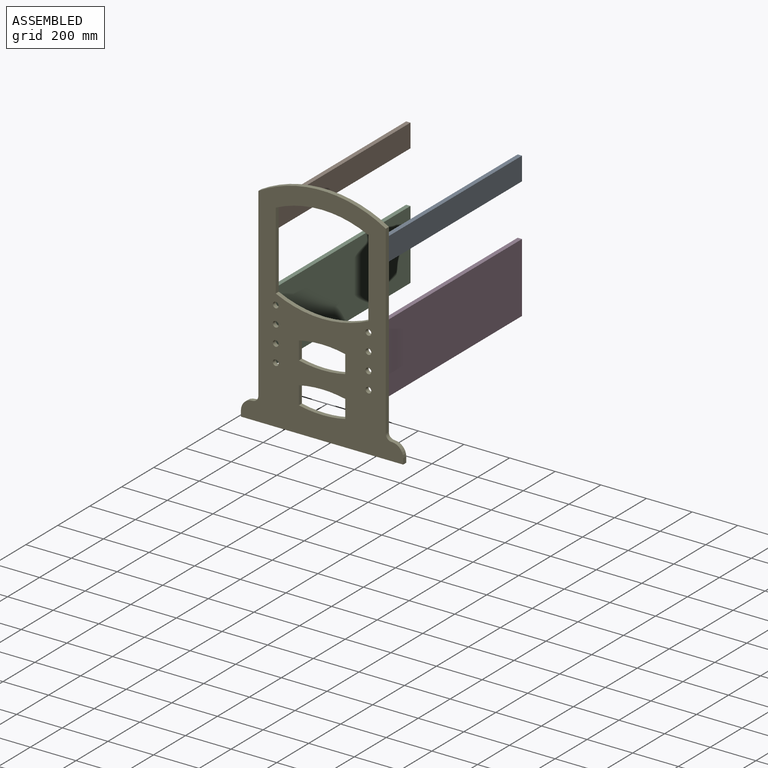
[diagram: assembled view]
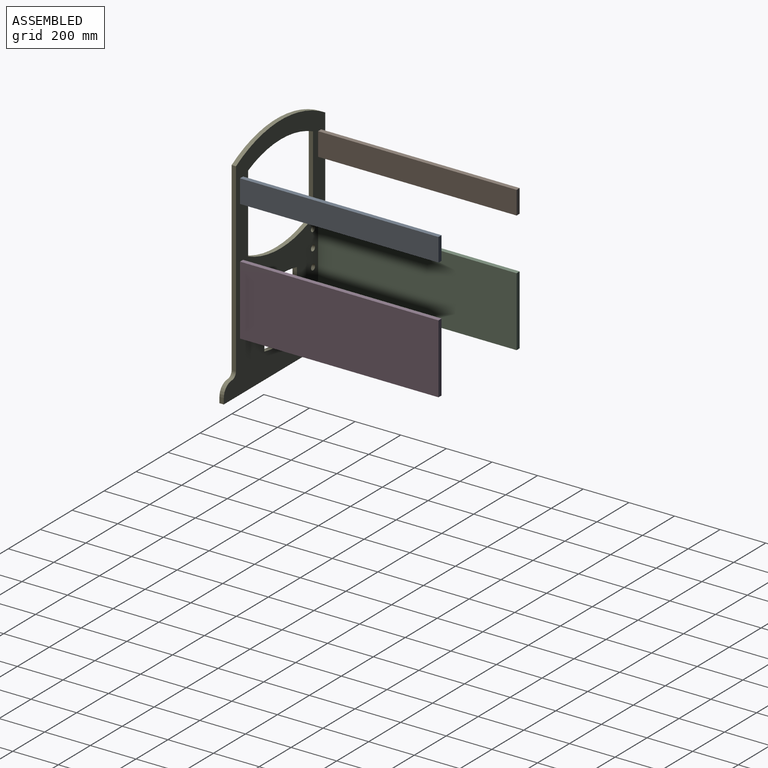
[diagram: assembled view, second angle]
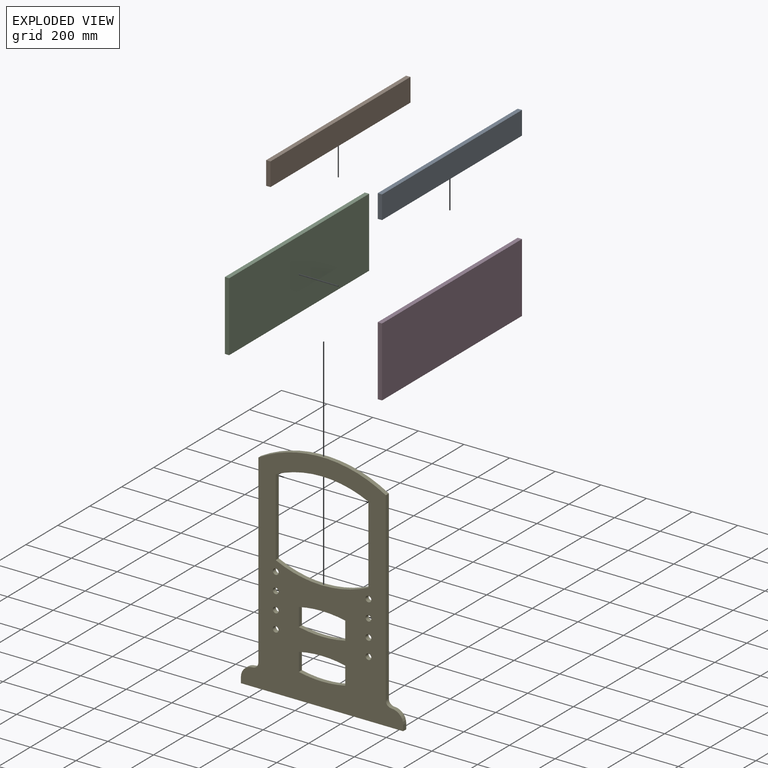
[diagram: exploded view]
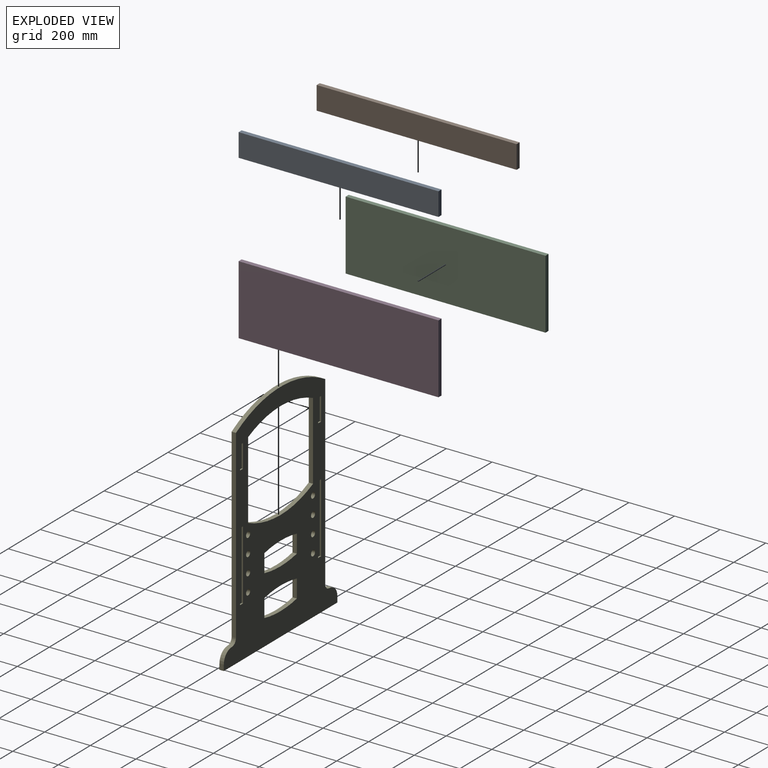
[diagram: exploded view, second angle]
ASSEMBLY  parts=5 mates=4
PART A: 6 faces, bbox 19.1x876.3x101.6 mm
  f0: plane 101.6x19.05mm, normal (0,-1,0), area 1935.5mm2, adj f1,f3,f4,f5
  f1: plane 876.3x19.05mm, normal (0,0,-1), area 16693.5mm2, adj f0,f2,f4,f5
  f2: plane 101.6x19.05mm, normal (0,1,0), area 1935.5mm2, adj f1,f3,f4,f5
  f3: plane 876.3x19.05mm, normal (0,0,1), area 16693.5mm2, adj f0,f2,f4,f5
  f4: plane 876.3x101.6mm, normal (1,0,0), area 89032.1mm2, adj f0,f1,f2,f3
  f5: plane 876.3x101.6mm, normal (-1,0,0), area 89032.1mm2, adj f0,f1,f2,f3
PART B: same geometry as A
PART C: 6 faces, bbox 19.1x876.3x304.8 mm
  f0: plane 304.8x19.05mm, normal (0,-1,0), area 5806.4mm2, adj f1,f3,f4,f5
  f1: plane 876.3x19.05mm, normal (0,0,-1), area 16693.5mm2, adj f0,f2,f4,f5
  f2: plane 304.8x19.05mm, normal (0,1,0), area 5806.4mm2, adj f1,f3,f4,f5
  f3: plane 876.3x19.05mm, normal (0,0,1), area 16693.5mm2, adj f0,f2,f4,f5
  f4: plane 876.3x304.8mm, normal (1,0,0), area 267096.2mm2, adj f0,f1,f2,f3
  f5: plane 876.3x304.8mm, normal (-1,0,0), area 267096.2mm2, adj f0,f1,f2,f3
PART D: same geometry as C
PART E: 56 faces, bbox 711.2x19.1x990.6 mm
  f0: plane 990.6x711.2mm, normal (0,1,0), area 329358.2mm2, adj f1,f2,f3,f4,f5,f6,f7,f8
  f1: plane 340.3x19.05mm, normal (1,0,0), area 6482.7mm2, adj f0,f2,f34,f35
  f2: cylinder r=474.13mm len=406.4mm, axis (0,1,0), area 8001mm2, adj f0,f1,f3,f35
  f3: plane 340.3x19.05mm, normal (-1,0,0), area 6482.7mm2, adj f0,f2,f34,f35
  f4: cylinder r=25.4mm len=25.4mm, axis (0,1,0), area 760.1mm2, adj f0,f5,f31,f35
  f5: plane 812.8x19.05mm, normal (1,0,0), area 15483.8mm2, adj f0,f4,f6,f35
  f6: cylinder r=550.33mm len=558.8mm, axis (0,1,0), area 11165.4mm2, adj f0,f5,f7,f35
  f7: plane 812.8x19.05mm, normal (-1,0,0), area 15483.8mm2, adj f0,f6,f8,f35
  f8: cylinder r=25.4mm len=25.4mm, axis (0,1,0), area 760.1mm2, adj f0,f7,f9,f35
  f9: cylinder r=50.8mm len=50.8mm, axis (0,1,0), area 1520.1mm2, adj f0,f8,f10,f35
  f10: plane 25.4x19.05mm, normal (-1,0,0), area 483.9mm2, adj f0,f9,f11,f35
  f11: plane 711.2x19.05mm, normal (0,0,-1), area 13548.4mm2, adj f0,f10,f12,f35
  f12: plane 25.4x19.05mm, normal (1,0,0), area 483.9mm2, adj f0,f11,f31,f35
  f13: cylinder r=474.13mm len=101.6mm, axis (0,1,0), area 1950.6mm2, adj f0,f14,f32,f35
  f14: cylinder r=474.13mm len=101.6mm, axis (0,1,0), area 1950.6mm2, adj f0,f13,f15,f35
  f15: plane 79.57x19.05mm, normal (1,0,0), area 1515.9mm2, adj f0,f14,f16,f35
  f16: cylinder r=474.13mm len=101.6mm, axis (0,1,0), area 1950.6mm2, adj f0,f15,f17,f35
  f17: cylinder r=474.13mm len=101.6mm, axis (0,1,0), area 1950.6mm2, adj f0,f16,f32,f35
  f18: plane 79.57x19.05mm, normal (-1,0,0), area 1515.9mm2, adj f0,f19,f33,f35
  f19: cylinder r=474.13mm len=101.6mm, axis (0,1,0), area 1950.6mm2, adj f0,f18,f20,f35
  f20: cylinder r=474.13mm len=101.6mm, axis (0,1,0), area 1950.6mm2, adj f0,f19,f21,f35
  f21: plane 79.57x19.05mm, normal (1,0,0), area 1515.9mm2, adj f0,f20,f22,f35
  f22: cylinder r=474.13mm len=101.6mm, axis (0,1,0), area 1950.6mm2, adj f0,f21,f33,f35
  f23: cylinder r=12.7mm len=25.4mm, axis (0,1,0), area 1520.1mm2, adj f0,f35
  f24: cylinder r=12.7mm len=25.4mm, axis (0,1,0), area 1520.1mm2, adj f0,f35
  f25: cylinder r=12.7mm len=25.4mm, axis (0,1,0), area 1520.1mm2, adj f0,f35
  f26: cylinder r=12.7mm len=25.4mm, axis (0,1,0), area 1520.1mm2, adj f0,f35
  f27: cylinder r=12.7mm len=25.4mm, axis (0,1,0), area 1520.1mm2, adj f0,f35
  f28: cylinder r=12.7mm len=25.4mm, axis (0,1,0), area 1520.1mm2, adj f0,f35
  f29: cylinder r=12.7mm len=25.4mm, axis (0,1,0), area 1520.1mm2, adj f0,f35
  f30: cylinder r=12.7mm len=25.4mm, axis (0,1,0), area 1520.1mm2, adj f0,f35
  f31: cylinder r=50.8mm len=50.8mm, axis (0,1,0), area 1520.1mm2, adj f0,f4,f12,f35
  f32: plane 79.57x19.05mm, normal (-1,0,0), area 1515.9mm2, adj f0,f13,f17,f35
  f33: cylinder r=474.13mm len=101.6mm, axis (0,1,0), area 1950.6mm2, adj f0,f18,f22,f35
  f34: cylinder r=474.13mm len=406.4mm, axis (0,1,0), area 8001mm2, adj f0,f1,f3,f35
  f35: plane 990.6x711.2mm, normal (0,-1,0), area 344842.1mm2, adj f1,f2,f3,f4,f5,f6,f7,f8
  f36: plane 101.6x6.35mm, normal (-1,0,0), area 645.2mm2, adj f0,f37,f39,f40
  f37: plane 19.05x6.35mm, normal (0,0,1), area 121mm2, adj f0,f36,f38,f40
  f38: plane 101.6x6.35mm, normal (1,0,0), area 645.2mm2, adj f0,f37,f39,f40
  f39: plane 19.05x6.35mm, normal (0,0,-1), area 121mm2, adj f0,f36,f38,f40
  f40: plane 101.6x19.05mm, normal (0,1,0), area 1935.5mm2, adj f36,f37,f38,f39
  f41: plane 304.8x6.35mm, normal (-1,0,0), area 1935.5mm2, adj f0,f42,f44,f45
  f42: plane 19.05x6.35mm, normal (0,0,1), area 121mm2, adj f0,f41,f43,f45
  f43: plane 304.8x6.35mm, normal (1,0,0), area 1935.5mm2, adj f0,f42,f44,f45
  f44: plane 19.05x6.35mm, normal (0,0,-1), area 121mm2, adj f0,f41,f43,f45
  f45: plane 304.8x19.05mm, normal (0,1,0), area 5806.4mm2, adj f41,f42,f43,f44
  f46: plane 304.8x6.35mm, normal (-1,0,0), area 1935.5mm2, adj f0,f47,f49,f50
  f47: plane 19.05x6.35mm, normal (0,0,1), area 121mm2, adj f0,f46,f48,f50
  f48: plane 304.8x6.35mm, normal (1,0,0), area 1935.5mm2, adj f0,f47,f49,f50
  f49: plane 19.05x6.35mm, normal (0,0,-1), area 121mm2, adj f0,f46,f48,f50
  f50: plane 304.8x19.05mm, normal (0,1,0), area 5806.4mm2, adj f46,f47,f48,f49
  f51: plane 19.05x6.35mm, normal (0,0,1), area 121mm2, adj f0,f52,f54,f55
  f52: plane 101.6x6.35mm, normal (1,0,0), area 645.2mm2, adj f0,f51,f53,f55
  f53: plane 19.05x6.35mm, normal (0,0,-1), area 121mm2, adj f0,f52,f54,f55
  f54: plane 101.6x6.35mm, normal (-1,0,0), area 645.2mm2, adj f0,f51,f53,f55
  f55: plane 101.6x19.05mm, normal (0,1,0), area 1935.5mm2, adj f51,f52,f53,f54
PLACE A t=(326.38,251.62,20.44)mm
PLACE B t=(-162.57,251.62,20.44)mm
PLACE C t=(-162.57,251.62,20.44)mm
PLACE D t=(326.38,251.62,20.44)mm
PLACE E t=(-187.97,257.97,-201.81)mm
MATE fastened B.f1 <-> E.f51  axis (0,0,1) through (-143.52,251.62,553.84)mm
MATE fastened D.f1 <-> E.f47  axis (0,0,1) through (345.43,251.62,20.44)mm
MATE fastened A.f1 <-> E.f37  axis (0,0,1) through (345.43,251.62,553.84)mm
MATE fastened C.f1 <-> E.f42  axis (0,0,1) through (-143.52,251.62,20.44)mm
